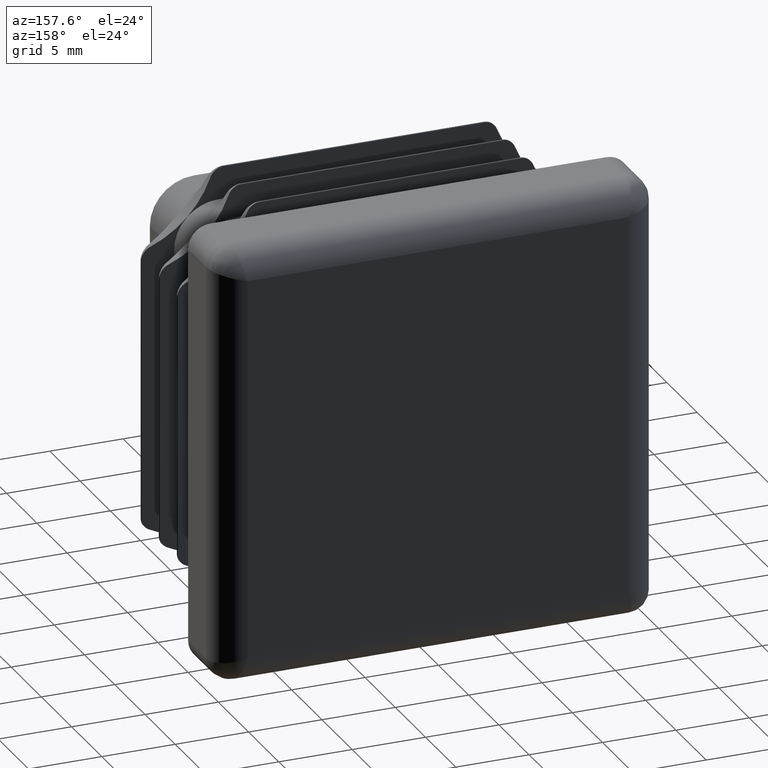
[diagram: clean part render]
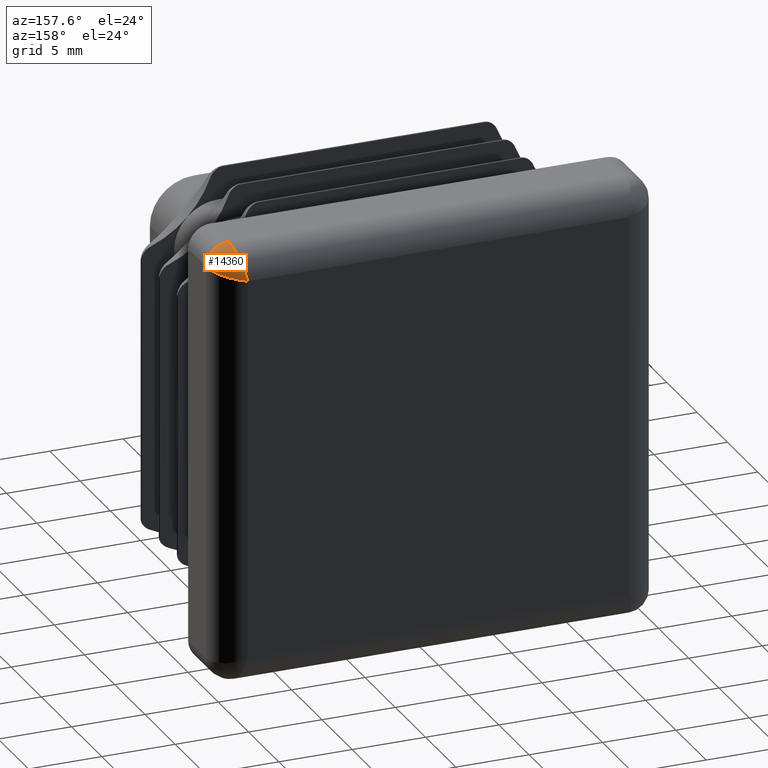
[diagram: same view with one face highlighted and labeled with its STEP entity id]
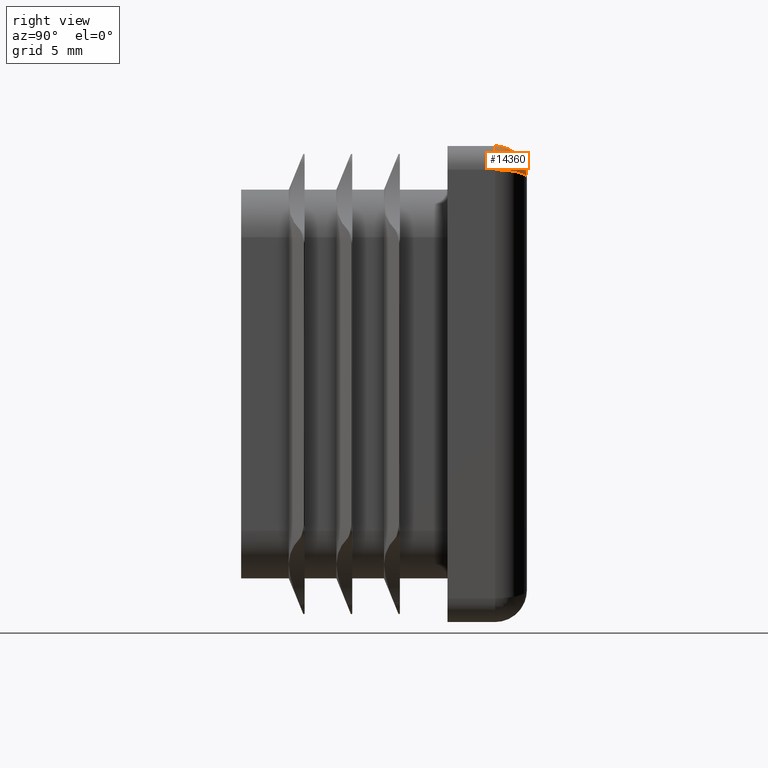
[diagram: same view with one face highlighted and labeled with its STEP entity id]
A machine part, auxiliary view. The second image highlights one B-rep face of the part: STEP entity #14360.
A second angle (right view) of the same face is appended — the face is thin or edge-on in the first view.
In plain terms, the highlighted face is a freeform B-spline surface patch.
Its self-contained STEP definition (entity closure, byte-faithful):
#703 = CARTESIAN_POINT ( 'NONE',  ( 14.96738104819233683, 3.454858333943214621, 14.96738104819228887 ) ) ;
#1024 = CARTESIAN_POINT ( 'NONE',  ( 14.22909352222538715, 4.599333602520810693, 13.30727338055634412 ) ) ;
#2221 = CARTESIAN_POINT ( 'NONE',  ( 13.06546163104480307, 5.000000000000000000, 13.26184652417920162 ) ) ;
#2293 = CARTESIAN_POINT ( 'NONE',  ( 13.49677695196014859, 3.261796233497769926, 14.98710780784053043 ) ) ;
#2300 = CARTESIAN_POINT ( 'NONE',  ( 13.16360286748301434, 4.999999997674066776, 13.16360286748334119 ) ) ;
#2456 = CARTESIAN_POINT ( 'NONE',  ( 14.73566316099949169, 4.002301403747633657, 13.43391579024989291 ) ) ;
#2714 = CARTESIAN_POINT ( 'NONE',  ( 13.00000000000000711, 5.000000000000000000, 13.00000000000001243 ) ) ;
#2872 = CARTESIAN_POINT ( 'NONE',  ( 15.00000000000000533, 4.171572875253810153, 13.50000000000001243 ) ) ;
#3257 = CARTESIAN_POINT ( 'NONE',  ( 13.50000000000000533, 3.000000000000000000, 15.00000000000001421 ) ) ;
#3454 =( BOUNDED_SURFACE ( )  B_SPLINE_SURFACE ( 3, 2, ( 
 ( #10083, #3774, #7061 ),
 ( #18105, #8635, #19685 ),
 ( #10215, #703, #2293 ),
 ( #6770, #11527, #8372 ),
 ( #19400, #5878, #19791 ),
 ( #14753, #7722, #12729 ),
 ( #2456, #17103, #19326 ),
 ( #20233, #10339, #7304 ),
 ( #20340, #18496, #20273 ),
 ( #1024, #19543, #13257 ),
 ( #8578, #11736, #18114 ),
 ( #17980, #5526, #19612 ),
 ( #3784, #2300, #2221 ),
 ( #7141, #14847, #3716 ) ),
 .UNSPECIFIED., .F., .F., .T. ) 
 B_SPLINE_SURFACE_WITH_KNOTS ( ( 4, 2, 2, 2, 2, 2, 4 ),
 ( 3, 3 ),
 ( 6.283185307179586232, 6.479534848028948524, 6.675884388878310816, 6.872233929727672219, 7.068583470577034511, 7.461282552275758206, 7.853981633974482790 ),
 ( 0.000000000000000000, 1.000000000000000000 ),
 .UNSPECIFIED. ) 
 GEOMETRIC_REPRESENTATION_ITEM ( )  RATIONAL_B_SPLINE_SURFACE ( (
 ( 1.000000000000000000, 0.7071067811865475727, 1.000000000000000000),
 ( 1.000000000000000000, 0.7070717008705407203, 1.000000000000000000),
 ( 1.000000000000000000, 0.7117460391535117559, 1.000000000000000000),
 ( 1.000000000000000000, 0.7291288573898047076, 1.000000000000000000),
 ( 1.000000000000000000, 0.7418334672881755631, 1.000000000000000000),
 ( 1.000000000000000000, 0.7723967724090278208, 1.000000000000000000),
 ( 1.000000000000000000, 0.7902180514827602531, 1.000000000000000000),
 ( 1.000000000000000000, 0.8275942267605802538, 1.000000000000000000),
 ( 1.000000000000000000, 0.8471316911967896601, 1.000000000000000000),
 ( 1.000000000000000000, 0.9038128289597346932, 1.000000000000000000),
 ( 1.000000000000000000, 0.9386556746367760162, 1.000000000000000000),
 ( 1.000000000000000000, 0.9867291651255366558, 1.000000000000000000),
 ( 1.000000000000000000, 1.000158598892032291, 1.000000000000000000),
 ( 1.000000000000000000, 1.000000000000000000, 1.000000000000000000) ) ) 
 REPRESENTATION_ITEM ( '' )  SURFACE ( )  );
#3716 = CARTESIAN_POINT ( 'NONE',  ( 13.00000000000000711, 5.000000000000000000, 13.00000000000001243 ) ) ;
#3774 = CARTESIAN_POINT ( 'NONE',  ( 15.00000000000000711, 2.999999999999999556, 15.00000000000001421 ) ) ;
#3784 = CARTESIAN_POINT ( 'NONE',  ( 13.26184652417914300, 5.000000000000000000, 13.06546163104479596 ) ) ;
#4804 = VERTEX_POINT ( 'NONE', #11239 ) ;
#5134 = VERTEX_POINT ( 'NONE', #8621 ) ;
#5526 = CARTESIAN_POINT ( 'NONE',  ( 13.33146403732651741, 4.987936888157853410, 13.33146403732644636 ) ) ;
#5878 = CARTESIAN_POINT ( 'NONE',  ( 14.76676386596486346, 4.041650783308551986, 14.76676386596487056 ) ) ;
#6018 =( BOUNDED_CURVE ( )  B_SPLINE_CURVE ( 3, ( #10900, #2872, #6355, #13945 ),
 .UNSPECIFIED., .F., .T. ) 
 B_SPLINE_CURVE_WITH_KNOTS ( ( 4, 4 ),
 ( 0.000000000000000000, 1.570796326794896558 ),
 .UNSPECIFIED. ) 
 CURVE ( )  GEOMETRIC_REPRESENTATION_ITEM ( )  RATIONAL_B_SPLINE_CURVE ( ( 1.000000000000000000, 0.8047378541243649375, 0.8047378541243649375, 1.000000000000000000 ) ) 
 REPRESENTATION_ITEM ( '' )  );
#6355 = CARTESIAN_POINT ( 'NONE',  ( 14.17157287525381371, 5.000000000000000888, 13.29289321881346453 ) ) ;
#6468 = CARTESIAN_POINT ( 'NONE',  ( 13.50000000000000355, 4.171572875253810153, 15.00000000000001421 ) ) ;
#6730 = DIRECTION ( 'NONE',  ( 0.000000000000000000, 0.000000000000000000, -1.000000000000000000 ) ) ;
#6770 = CARTESIAN_POINT ( 'NONE',  ( 14.93603331377241261, 3.518565054566740624, 13.48400832844310138 ) ) ;
#7061 = CARTESIAN_POINT ( 'NONE',  ( 13.50000000000000711, 3.000000000000000000, 15.00000000000001421 ) ) ;
#7141 = CARTESIAN_POINT ( 'NONE',  ( 13.00000000000000888, 5.000000000000000000, 13.00000000000001243 ) ) ;
#7304 = CARTESIAN_POINT ( 'NONE',  ( 13.39755382205267331, 4.219979528330771501, 14.59021528821071101 ) ) ;
#7722 = CARTESIAN_POINT ( 'NONE',  ( 14.57850611585097766, 4.337851778722848550, 14.57850611585098299 ) ) ;
#8372 = CARTESIAN_POINT ( 'NONE',  ( 13.48400832844309427, 3.518565054566741068, 14.93603331377241972 ) ) ;
#8578 = CARTESIAN_POINT ( 'NONE',  ( 14.00723787374817242, 4.747572812742459014, 13.25180946843707375 ) ) ;
#8621 = CARTESIAN_POINT ( 'NONE',  ( 15.00000000000000711, 3.000000000000000000, 13.50000000000001243 ) ) ;
#8635 = CARTESIAN_POINT ( 'NONE',  ( 14.99999999108471194, 3.229445146648385556, 14.99999999108480608 ) ) ;
#10083 = CARTESIAN_POINT ( 'NONE',  ( 15.00000000000000711, 3.000000000000000000, 13.50000000000001421 ) ) ;
#10215 = CARTESIAN_POINT ( 'NONE',  ( 14.98710780784052332, 3.261796233497769482, 13.49677695196015570 ) ) ;
#10339 = CARTESIAN_POINT ( 'NONE',  ( 14.26722595265668403, 4.642399879337959945, 14.26722595265665561 ) ) ;
#10713 = EDGE_CURVE ( 'NONE', #13670, #4804, #14237, .T. ) ;
#10900 = CARTESIAN_POINT ( 'NONE',  ( 15.00000000000000711, 3.000000000000000000, 13.50000000000001243 ) ) ;
#10947 = CARTESIAN_POINT ( 'NONE',  ( 13.29289321881345742, 5.000000000000000888, 14.17157287525382259 ) ) ;
#11239 = CARTESIAN_POINT ( 'NONE',  ( 13.50000000000000533, 3.000000000000000000, 15.00000000000001421 ) ) ;
#11527 = CARTESIAN_POINT ( 'NONE',  ( 14.84930378278232332, 3.862933231318114835, 14.84930378278238905 ) ) ;
#11564 = ORIENTED_EDGE ( 'NONE', *, *, #17644, .T. ) ;
#11736 = CARTESIAN_POINT ( 'NONE',  ( 13.67928185404614005, 4.924992851440343600, 13.67928185404622177 ) ) ;
#12400 = AXIS2_PLACEMENT_3D ( 'NONE', #16271, #12856, #6730 ) ;
#12729 = CARTESIAN_POINT ( 'NONE',  ( 13.44941648749878027, 3.886302342411101396, 14.79766594999508023 ) ) ;
#12742 = CARTESIAN_POINT ( 'NONE',  ( 13.00000000000000711, 5.000000000000000000, 13.00000000000001243 ) ) ;
#12856 = DIRECTION ( 'NONE',  ( 0.000000000000000000, -1.000000000000000000, 0.000000000000000000 ) ) ;
#13257 = CARTESIAN_POINT ( 'NONE',  ( 13.30727338055633702, 4.599333602520846220, 14.22909352222535873 ) ) ;
#13670 = VERTEX_POINT ( 'NONE', #2714 ) ;
#13945 = CARTESIAN_POINT ( 'NONE',  ( 13.00000000000000711, 5.000000000000000000, 13.00000000000001243 ) ) ;
#14237 =( BOUNDED_CURVE ( )  B_SPLINE_CURVE ( 3, ( #12742, #10947, #6468, #3257 ),
 .UNSPECIFIED., .F., .T. ) 
 B_SPLINE_CURVE_WITH_KNOTS ( ( 4, 4 ),
 ( 4.712388980384689674, 6.283185307179586232 ),
 .UNSPECIFIED. ) 
 CURVE ( )  GEOMETRIC_REPRESENTATION_ITEM ( )  RATIONAL_B_SPLINE_CURVE ( ( 1.000000000000000000, 0.8047378541243649375, 0.8047378541243649375, 1.000000000000000000 ) ) 
 REPRESENTATION_ITEM ( '' )  );
#14360 = ADVANCED_FACE ( 'NONE', ( #17831 ), #3454, .T. ) ;
#14753 = CARTESIAN_POINT ( 'NONE',  ( 14.79766594999506779, 3.886302342411114275, 13.44941648749878738 ) ) ;
#14847 = CARTESIAN_POINT ( 'NONE',  ( 13.00000000000000888, 5.000000000000000000, 13.00000000000001243 ) ) ;
#15694 = ORIENTED_EDGE ( 'NONE', *, *, #10713, .T. ) ;
#16271 = CARTESIAN_POINT ( 'NONE',  ( 13.50000000000000711, 3.000000000000000000, 13.50000000000001243 ) ) ;
#17103 = CARTESIAN_POINT ( 'NONE',  ( 14.47512791244874997, 4.456070975774497178, 14.47512791244878549 ) ) ;
#17459 = ORIENTED_EDGE ( 'NONE', *, *, #18246, .F. ) ;
#17644 = EDGE_CURVE ( 'NONE', #5134, #13670, #6018, .T. ) ;
#17831 = FACE_OUTER_BOUND ( 'NONE', #18864, .T. ) ;
#17980 = CARTESIAN_POINT ( 'NONE',  ( 13.52349585571220381, 4.947945317302687052, 13.13087396392804251 ) ) ;
#18105 = CARTESIAN_POINT ( 'NONE',  ( 15.00000000000000711, 3.130901116873742840, 13.49999999993458744 ) ) ;
#18114 = CARTESIAN_POINT ( 'NONE',  ( 13.25180946843706664, 4.747572812742430592, 14.00723787374824347 ) ) ;
#18246 = EDGE_CURVE ( 'NONE', #5134, #4804, #19186, .T. ) ;
#18496 = CARTESIAN_POINT ( 'NONE',  ( 14.16316994876158297, 4.712569180173952432, 14.16316994876162028 ) ) ;
#18864 = EDGE_LOOP ( 'NONE', ( #17459, #11564, #15694 ) ) ;
#19186 = CIRCLE ( 'NONE', #12400, 1.499999999999999556 ) ;
#19326 = CARTESIAN_POINT ( 'NONE',  ( 13.43391579024988580, 4.002301403747634545, 14.73566316099949880 ) ) ;
#19400 = CARTESIAN_POINT ( 'NONE',  ( 14.89785218005009426, 3.644431387049237525, 13.47446304501252712 ) ) ;
#19543 = CARTESIAN_POINT ( 'NONE',  ( 13.86849808255898076, 4.871239223148132069, 13.86849808255891325 ) ) ;
#19612 = CARTESIAN_POINT ( 'NONE',  ( 13.13087396392803541, 4.947945317302713697, 13.52349585571214341 ) ) ;
#19685 = CARTESIAN_POINT ( 'NONE',  ( 13.49999999993458033, 3.130901116873741064, 15.00000000000001421 ) ) ;
#19791 = CARTESIAN_POINT ( 'NONE',  ( 13.47446304501252001, 3.644431387049250848, 14.89785218005009604 ) ) ;
#20233 = CARTESIAN_POINT ( 'NONE',  ( 14.59021528821070390, 4.219979528330771501, 13.39755382205268042 ) ) ;
#20273 = CARTESIAN_POINT ( 'NONE',  ( 13.37669339561175263, 4.321653542299215722, 14.50677358244698745 ) ) ;
#20340 = CARTESIAN_POINT ( 'NONE',  ( 14.50677358244696435, 4.321653542299232598, 13.37669339561175974 ) ) ;